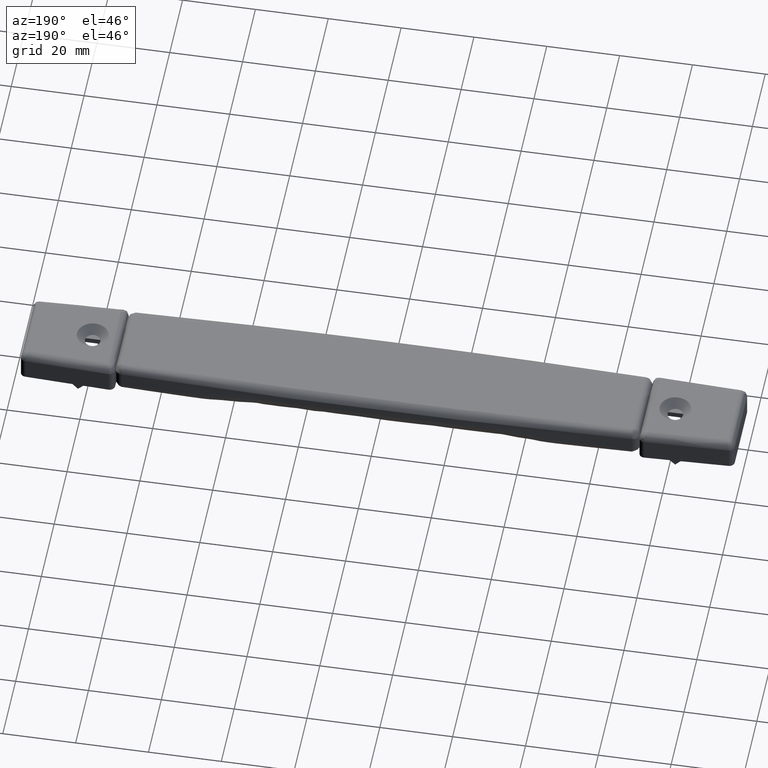
[diagram: clean part render]
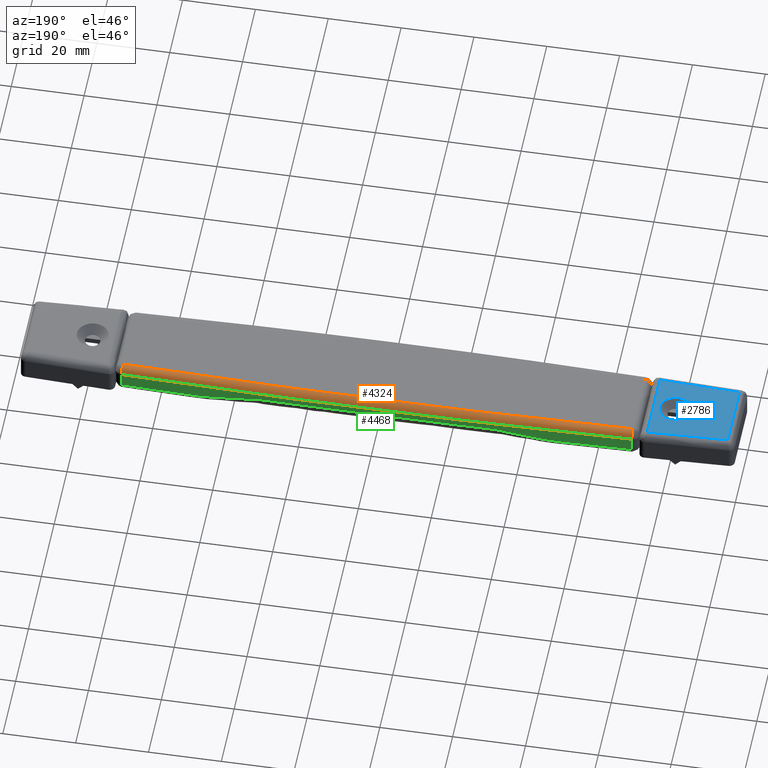
[diagram: same view with three faces highlighted in distinct colors, each labeled with its STEP entity id]
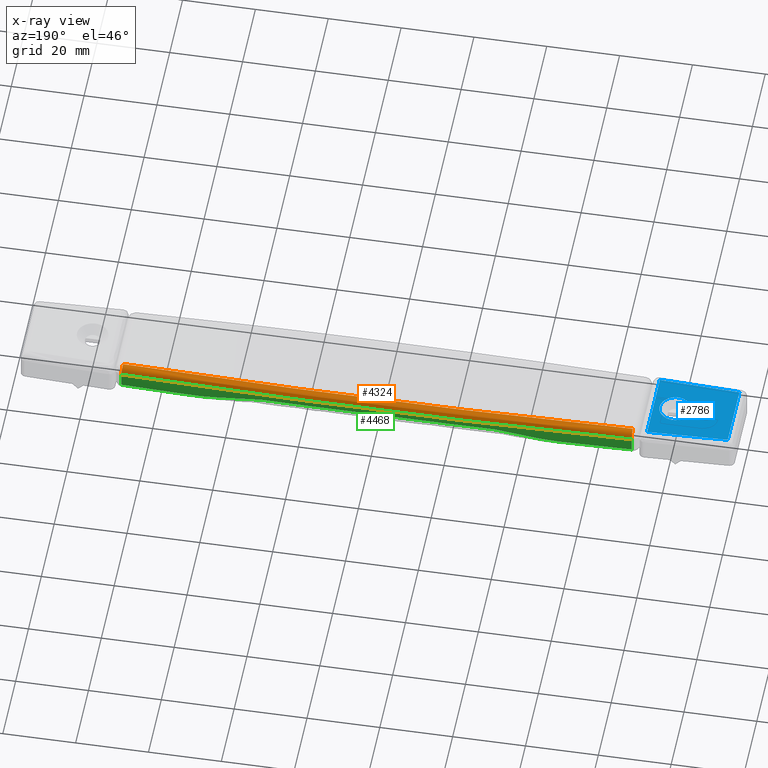
[diagram: x-ray of the same camera — body ghosted, the three highlighted faces saturated]
A machine part, auxiliary view with three faces highlighted in distinct colors.
The next image is the same camera in x-ray (body ghosted, the three faces saturated) — at least one of them is partly hidden behind the body in this view.
Their STEP definitions:

[orange] entity #4324 — the highlighted face is a freeform B-spline surface patch.
#3517=CARTESIAN_POINT('',(-69.999500000000012,9.434623333454349,7.999999999999900));
#3518=VERTEX_POINT('',#3517);
#3541=CARTESIAN_POINT('',(70.0,9.434608095802320,7.999999999999900));
#3542=VERTEX_POINT('',#3541);
#3548=CARTESIAN_POINT('',(70.0,9.434608095802320,7.999999999999900));
#3549=CARTESIAN_POINT('',(0.000250232184545,11.567879369502428,7.999999999999900));
#3550=CARTESIAN_POINT('',(-69.999499999999827,9.434623333454351,7.999999999999900));
#3558=(BOUNDED_CURVE()B_SPLINE_CURVE(2,(#3548,#3549,#3550),.UNSPECIFIED.,.F.,.U.)CURVE()GEOMETRIC_REPRESENTATION_ITEM()QUASI_UNIFORM_CURVE()RATIONAL_B_SPLINE_CURVE((1.0,0.999535951137790,1.0))REPRESENTATION_ITEM(''));
#3559=EDGE_CURVE('',#3542,#3518,#3558,.T.);
#4203=CARTESIAN_POINT('',(70.060922541340304,11.433679991446960,5.999999999999890));
#4204=VERTEX_POINT('',#4203);
#4218=CARTESIAN_POINT('',(70.060922541340304,11.433679991446960,5.999999999999890));
#4219=CARTESIAN_POINT('',(70.060922541340318,11.433679991446954,7.999999999999890));
#4220=CARTESIAN_POINT('',(70.0,9.434608095802219,7.999999999999889));
#4228=(BOUNDED_CURVE()B_SPLINE_CURVE(2,(#4218,#4219,#4220),.UNSPECIFIED.,.F.,.U.)CURVE()GEOMETRIC_REPRESENTATION_ITEM()QUASI_UNIFORM_CURVE()RATIONAL_B_SPLINE_CURVE((1.0,0.707106781186548,1.0))REPRESENTATION_ITEM(''));
#4229=EDGE_CURVE('',#4204,#3542,#4228,.T.);
#4275=CARTESIAN_POINT('',(-76.984070528232863,9.071984501828144,7.995158726982331));
#4276=CARTESIAN_POINT('',(0.000252814936310,11.652599957572246,7.995158726982332));
#4277=CARTESIAN_POINT('',(76.984575590574167,9.071967571420673,7.995158726982332));
#4278=CARTESIAN_POINT('',(-77.060930227571347,11.364845273765408,8.155074353999959));
#4279=CARTESIAN_POINT('',(0.000253067342792,13.948037175866201,8.155074353999957));
#4280=CARTESIAN_POINT('',(77.061435794158982,11.364828326454887,8.155074353999961));
#4281=CARTESIAN_POINT('',(-77.055572655346268,11.205019418429194,5.860925724765108));
#4282=CARTESIAN_POINT('',(0.000253049748597,13.788031727094705,5.860925724765110));
#4283=CARTESIAN_POINT('',(77.056078186785015,11.205002472296924,5.860925724765111));
#4291=(BOUNDED_SURFACE()B_SPLINE_SURFACE(2,2,((#4275,#4278,#4281),(#4276,#4279,#4282),(#4277,#4280,#4283)),.UNSPECIFIED.,.F.,.F.,.U.)B_SPLINE_SURFACE_WITH_KNOTS((3,3),(3,3),(35.002526400375373,189.154066922378600),(0.417733704456687,4.062481666198373),.UNSPECIFIED.)GEOMETRIC_REPRESENTATION_ITEM()RATIONAL_B_SPLINE_SURFACE(((0.892954805773464,0.585979223704067,0.892954805690098),(0.892453529572847,0.585650273753857,0.892453529489529),(0.892954809063988,0.585979225863391,0.892954808980622)))REPRESENTATION_ITEM('')SURFACE());
#4292=CARTESIAN_POINT('',(-70.060422106179104,11.433695242360381,5.999999999999890));
#4293=VERTEX_POINT('',#4292);
#4294=CARTESIAN_POINT('',(-70.060422106179303,11.433695242360310,5.999999999999890));
#4295=CARTESIAN_POINT('',(-70.060422106179303,11.433695242360312,7.999999999999452));
#4296=CARTESIAN_POINT('',(-69.999500000000026,9.434623333454349,7.999999999999889));
#4304=(BOUNDED_CURVE()B_SPLINE_CURVE(2,(#4294,#4295,#4296),.UNSPECIFIED.,.F.,.U.)CURVE()GEOMETRIC_REPRESENTATION_ITEM()QUASI_UNIFORM_CURVE()RATIONAL_B_SPLINE_CURVE((1.0,0.707106781186625,1.0))REPRESENTATION_ITEM(''));
#4305=EDGE_CURVE('',#4293,#3518,#4304,.T.);
#4306=ORIENTED_EDGE('',*,*,#4305,.T.);
#4307=ORIENTED_EDGE('',*,*,#3559,.F.);
#4308=ORIENTED_EDGE('',*,*,#4229,.F.);
#4309=CARTESIAN_POINT('',(-70.060422106179175,11.433695242360381,5.999999999999890));
#4310=CARTESIAN_POINT('',(0.000250449971445,13.568807898109100,5.999999999999890));
#4311=CARTESIAN_POINT('',(70.060922541340048,11.433679991446949,5.999999999999890));
#4319=(BOUNDED_CURVE()B_SPLINE_CURVE(2,(#4309,#4310,#4311),.UNSPECIFIED.,.F.,.U.)CURVE()GEOMETRIC_REPRESENTATION_ITEM()QUASI_UNIFORM_CURVE()RATIONAL_B_SPLINE_CURVE((1.0,0.999535951137790,1.0))REPRESENTATION_ITEM(''));
#4320=EDGE_CURVE('',#4293,#4204,#4319,.T.);
#4321=ORIENTED_EDGE('',*,*,#4320,.F.);
#4322=EDGE_LOOP('',(#4306,#4307,#4308,#4321));
#4323=FACE_OUTER_BOUND('',#4322,.T.);
#4324=ADVANCED_FACE('',(#4323),#4291,.T.);

[blue] entity #2786 — the highlighted face is a freeform B-spline surface patch.
#903=CARTESIAN_POINT('',(-79.662625885912988,-4.286744535178922,8.000000000318709));
#904=VERTEX_POINT('',#903);
#910=CARTESIAN_POINT('',(-75.699999999999932,7.894425E-016,7.999999999999900));
#911=VERTEX_POINT('',#910);
#912=CARTESIAN_POINT('',(-75.699999999999932,7.894425E-016,7.999999999999900));
#913=CARTESIAN_POINT('',(-75.699999999987426,-3.974879112026979,8.000000000159306));
#914=CARTESIAN_POINT('',(-79.662625885912988,-4.286744535178923,8.000000000318709));
#922=(BOUNDED_CURVE()B_SPLINE_CURVE(2,(#912,#913,#914),.UNSPECIFIED.,.F.,.U.)B_SPLINE_CURVE_WITH_KNOTS((3,3),(0.0,0.236331300535502),.UNSPECIFIED.)CURVE()GEOMETRIC_REPRESENTATION_ITEM()RATIONAL_B_SPLINE_CURVE((1.0,0.723120658719150,0.969723355968831))REPRESENTATION_ITEM(''));
#923=EDGE_CURVE('',#911,#904,#922,.T.);
#925=CARTESIAN_POINT('',(-80.337374114087012,4.286744535178924,8.000000000318709));
#926=VERTEX_POINT('',#925);
#927=CARTESIAN_POINT('',(-80.337374114087012,4.286744535178924,8.000000000318709));
#928=CARTESIAN_POINT('',(-80.168947461379304,4.300000000312125,8.000000000312918));
#929=CARTESIAN_POINT('',(-80.000000000024059,4.300000000305882,8.000000000306656));
#930=CARTESIAN_POINT('',(-75.700000000011471,4.300000000146969,8.000000000147253));
#931=CARTESIAN_POINT('',(-75.699999999999932,7.894425E-016,7.999999999999900));
#939=(BOUNDED_CURVE()B_SPLINE_CURVE(2,(#927,#928,#929,#930,#931),.UNSPECIFIED.,.F.,.U.)B_SPLINE_CURVE_WITH_KNOTS((3,2,3),(0.736331300535502,0.750000000000000,1.0),.UNSPECIFIED.)CURVE()GEOMETRIC_REPRESENTATION_ITEM()RATIONAL_B_SPLINE_CURVE((0.969723355968831,0.983986122467398,1.0,0.707106781186548,1.0))REPRESENTATION_ITEM(''));
#940=EDGE_CURVE('',#926,#911,#939,.T.);
#976=CARTESIAN_POINT('',(-84.300000000000068,7.894425E-016,7.999999999999900));
#977=VERTEX_POINT('',#976);
#978=CARTESIAN_POINT('',(-84.300000000000068,7.894425E-016,7.999999999999900));
#979=CARTESIAN_POINT('',(-84.300000000012574,3.974879112026983,8.000000000159306));
#980=CARTESIAN_POINT('',(-80.337374114087012,4.286744535178924,8.000000000318709));
#988=(BOUNDED_CURVE()B_SPLINE_CURVE(2,(#978,#979,#980),.UNSPECIFIED.,.F.,.U.)B_SPLINE_CURVE_WITH_KNOTS((3,3),(0.500000000000000,0.736331300535502),.UNSPECIFIED.)CURVE()GEOMETRIC_REPRESENTATION_ITEM()RATIONAL_B_SPLINE_CURVE((1.0,0.723120658719150,0.969723355968831))REPRESENTATION_ITEM(''));
#989=EDGE_CURVE('',#977,#926,#988,.T.);
#991=CARTESIAN_POINT('',(-79.662625885912988,-4.286744535178922,8.000000000318709));
#992=CARTESIAN_POINT('',(-79.831052538620682,-4.300000000312123,8.000000000312918));
#993=CARTESIAN_POINT('',(-79.999999999975927,-4.300000000305880,8.000000000306656));
#994=CARTESIAN_POINT('',(-84.299999999988501,-4.300000000146967,8.000000000147253));
#995=CARTESIAN_POINT('',(-84.300000000000068,7.894425E-016,7.999999999999900));
#1003=(BOUNDED_CURVE()B_SPLINE_CURVE(2,(#991,#992,#993,#994,#995),.UNSPECIFIED.,.F.,.U.)B_SPLINE_CURVE_WITH_KNOTS((3,2,3),(0.236331300535503,0.250000000000000,0.500000000000000),.UNSPECIFIED.)CURVE()GEOMETRIC_REPRESENTATION_ITEM()RATIONAL_B_SPLINE_CURVE((0.969723355968832,0.983986122467398,1.0,0.707106781186548,1.0))REPRESENTATION_ITEM(''));
#1004=EDGE_CURVE('',#904,#977,#1003,.T.);
#2117=CARTESIAN_POINT('',(-74.0,9.921535138724162,7.999999999999900));
#2118=VERTEX_POINT('',#2117);
#2472=CARTESIAN_POINT('',(-96.0,-9.074990840627189,7.999999999999900));
#2473=VERTEX_POINT('',#2472);
#2517=CARTESIAN_POINT('',(-74.0,-9.921512579757639,7.999999999999900));
#2518=VERTEX_POINT('',#2517);
#2532=CARTESIAN_POINT('',(-96.0,-9.074990840627189,7.999999999999900));
#2533=CARTESIAN_POINT('',(-74.0,-9.921512579757639,7.999999999999900));
#2534=QUASI_UNIFORM_CURVE('',1,(#2532,#2533),.UNSPECIFIED.,.F.,.U.);
#2535=EDGE_CURVE('',#2473,#2518,#2534,.T.);
#2556=CARTESIAN_POINT('',(-96.0,9.075969921332749,7.999999999999900));
#2557=VERTEX_POINT('',#2556);
#2573=CARTESIAN_POINT('',(-96.0,9.075969921332749,7.999999999999900));
#2574=CARTESIAN_POINT('',(-96.0,-9.074990840627189,7.999999999999900));
#2575=QUASI_UNIFORM_CURVE('',1,(#2573,#2574),.UNSPECIFIED.,.F.,.U.);
#2576=EDGE_CURVE('',#2557,#2473,#2575,.T.);
#2732=CARTESIAN_POINT('',(-74.0,-9.921512579757639,7.999999999999900));
#2733=CARTESIAN_POINT('',(-74.0,9.921535138724162,7.999999999999900));
#2734=QUASI_UNIFORM_CURVE('',1,(#2732,#2733),.UNSPECIFIED.,.F.,.U.);
#2735=EDGE_CURVE('',#2518,#2118,#2734,.T.);
#2761=CARTESIAN_POINT('',(-74.0,9.921535138724162,7.999999999999900));
#2762=CARTESIAN_POINT('',(-96.0,9.075969921332749,7.999999999999900));
#2763=QUASI_UNIFORM_CURVE('',1,(#2761,#2762),.UNSPECIFIED.,.F.,.U.);
#2764=EDGE_CURVE('',#2118,#2557,#2763,.T.);
#2769=CARTESIAN_POINT('',(-72.901100042640266,-10.912672774836130,7.999999999999900));
#2770=CARTESIAN_POINT('',(-97.098900547445737,-10.912672774836130,7.999999999999900));
#2771=CARTESIAN_POINT('',(-72.901100042640266,10.912695866034669,7.999999999999900));
#2772=CARTESIAN_POINT('',(-97.098900547445737,10.912695866034669,7.999999999999900));
#2773=B_SPLINE_SURFACE_WITH_KNOTS('',1,1,((#2769,#2771),(#2770,#2772)),.UNSPECIFIED.,.F.,.F.,.U.,(2,2),(2,2),(0.0,24.197800504805471),(0.0,21.825368640870799),.UNSPECIFIED.);
#2774=ORIENTED_EDGE('',*,*,#2764,.T.);
#2775=ORIENTED_EDGE('',*,*,#2576,.T.);
#2776=ORIENTED_EDGE('',*,*,#2535,.T.);
#2777=ORIENTED_EDGE('',*,*,#2735,.T.);
#2778=EDGE_LOOP('',(#2774,#2775,#2776,#2777));
#2779=FACE_OUTER_BOUND('',#2778,.T.);
#2780=ORIENTED_EDGE('',*,*,#989,.T.);
#2781=ORIENTED_EDGE('',*,*,#940,.T.);
#2782=ORIENTED_EDGE('',*,*,#923,.T.);
#2783=ORIENTED_EDGE('',*,*,#1004,.T.);
#2784=EDGE_LOOP('',(#2780,#2781,#2782,#2783));
#2785=FACE_BOUND('',#2784,.T.);
#2786=ADVANCED_FACE('',(#2779,#2785),#2773,.F.);

[green] entity #4468 — the highlighted face is a freeform B-spline surface patch.
#3756=CARTESIAN_POINT('',(-70.060422106179104,11.433695242360381,1.999999999991010));
#3757=VERTEX_POINT('',#3756);
#3825=CARTESIAN_POINT('',(70.060922541340304,11.433679991446960,1.999999999896195));
#3826=VERTEX_POINT('',#3825);
#4009=CARTESIAN_POINT('',(70.060922541340304,11.433679991446960,1.999999999896195));
#4010=CARTESIAN_POINT('',(67.985131336759324,11.495347299858439,1.999993883140335));
#4011=CARTESIAN_POINT('',(64.287772353036388,11.605187912081460,1.999982987908680));
#4012=CARTESIAN_POINT('',(59.422637933759361,11.734434931665410,1.999929759156624));
#4013=CARTESIAN_POINT('',(55.920146009163922,11.821705197428059,1.999759724209971));
#4014=CARTESIAN_POINT('',(53.780445617778902,11.872309873604150,1.999695167426434));
#4015=CARTESIAN_POINT('',(51.908328084759823,11.915412058841730,1.999194516618192));
#4016=CARTESIAN_POINT('',(50.189855998140303,11.953675422206061,1.997023135148806));
#4017=CARTESIAN_POINT('',(48.282474114825568,11.994328023734891,2.031015246930440));
#4018=CARTESIAN_POINT('',(46.789952241923807,12.025158133439991,2.136643394078094));
#4019=CARTESIAN_POINT('',(45.330115759733701,12.054424371915699,2.275542792962875));
#4020=CARTESIAN_POINT('',(43.757273740416757,12.084915797592551,2.462204261943198));
#4021=CARTESIAN_POINT('',(41.772135691980928,12.121993774732100,2.743234184840033));
#4022=CARTESIAN_POINT('',(39.490165654738071,12.162443801821221,3.083669301762111));
#4023=CARTESIAN_POINT('',(37.132250762432207,12.201589754872611,3.428052244833480));
#4024=CARTESIAN_POINT('',(34.903226831538277,12.236474061708490,3.714460876428911));
#4025=CARTESIAN_POINT('',(32.807877446922319,12.267345917879000,3.910592128922406));
#4026=CARTESIAN_POINT('',(31.121941804897581,12.290578290335629,3.995093032932618));
#4027=CARTESIAN_POINT('',(29.722420497016191,12.309029607740131,3.997408513673379));
#4028=CARTESIAN_POINT('',(28.262738581547609,12.327598158260731,4.000094187189374));
#4029=CARTESIAN_POINT('',(25.566601792356259,12.359721099678969,3.999938760325939));
#4030=CARTESIAN_POINT('',(21.897281992803080,12.398150366457690,4.000020180392837));
#4031=CARTESIAN_POINT('',(16.058199914959680,12.448184576810039,3.999988300429789));
#4032=CARTESIAN_POINT('',(8.759189256293141,12.489880334898430,4.000004394217262));
#4033=CARTESIAN_POINT('',(0.000250331616593,12.506559355869680,3.999997341456932));
#4034=CARTESIAN_POINT('',(-8.758688580299173,12.489882241542160,4.000006239955027));
#4035=CARTESIAN_POINT('',(-16.057699289013449,12.448188072376951,3.999982455592831));
#4036=CARTESIAN_POINT('',(-21.896781295795869,12.398155132952921,4.000030331956829));
#4037=CARTESIAN_POINT('',(-25.565834010762160,12.359729464689400,3.999907937711593));
#4038=CARTESIAN_POINT('',(-28.261703109986879,12.327610764221211,4.000141554602434));
#4039=CARTESIAN_POINT('',(-29.721385716080931,12.309043041597709,3.997320272378577));
#4040=CARTESIAN_POINT('',(-30.881647236796240,12.293746563852411,3.995683347691382));
#4041=CARTESIAN_POINT('',(-32.042538483530556,12.277931404488911,3.950467621605908));
#4042=CARTESIAN_POINT('',(-33.502778908846622,12.257145692082339,3.847372530678634));
#4043=CARTESIAN_POINT('',(-35.148482330236753,12.232635327462230,3.682726410271000));
#4044=CARTESIAN_POINT('',(-37.131358179487513,12.201604185640431,3.428184543302800));
#4045=CARTESIAN_POINT('',(-39.489100171099217,12.162462199761849,3.083700998785987));
#4046=CARTESIAN_POINT('',(-41.771462835696347,12.122006046476431,2.743362297375454));
#4047=CARTESIAN_POINT('',(-44.003162465916837,12.080323365574650,2.427116775849035));
#4048=CARTESIAN_POINT('',(-46.021809950761231,12.040866812663999,2.199228087670828));
#4049=CARTESIAN_POINT('',(-48.042182117738719,11.999446180340790,2.036205342506074));
#4050=CARTESIAN_POINT('',(-50.189200014797727,11.953700553492739,1.996636615232163));
#4051=CARTESIAN_POINT('',(-53.147692924984362,11.887727873994031,2.000669781414121));
#4052=CARTESIAN_POINT('',(-59.885507897561162,11.728291712555770,1.998979531422958));
#4053=CARTESIAN_POINT('',(-65.722335943254777,11.559296780103111,1.999564922069809));
#4054=CARTESIAN_POINT('',(-70.060422106174798,11.433695242360820,2.000000000000002));
#4055=B_SPLINE_CURVE_WITH_KNOTS('',3,(#4009,#4010,#4011,#4012,#4013,#4014,#4015,#4016,#4017,#4018,#4019,#4020,#4021,#4022,#4023,#4024,#4025,#4026,#4027,#4028,#4029,#4030,#4031,#4032,#4033,#4034,#4035,#4036,#4037,#4038,#4039,#4040,#4041,#4042,#4043,#4044,#4045,#4046,#4047,#4048,#4049,#4050,#4051,#4052,#4053,#4054),.UNSPECIFIED.,.F.,.U.,(4,1,1,1,1,1,1,1,1,1,1,1,1,1,1,1,1,1,1,1,1,1,1,1,1,1,1,1,1,1,1,1,1,1,1,1,1,1,1,1,1,1,1,4),(0.0,0.044380496203012,0.079049678009906,0.104007542385464,0.119254087166153,0.124789311191695,0.144026214445056,0.155990512016442,0.165554416205118,0.175999984476000,0.187333969360913,0.199405368822754,0.218852457233639,0.236648714342782,0.250336457954506,0.266880499127404,0.281618429992742,0.286391305264236,0.296790428711076,0.312815851447357,0.344013180195941,0.375210508944526,0.437605138164037,0.499999767383551,0.562394396603000,0.624789025822489,0.655986354571073,0.687183683319654,0.703203393315066,0.713602516761913,0.718381104685008,0.728000001937689,0.738424419784774,0.749664719435598,0.763343966310338,0.781148721350472,0.800592107111735,0.812667208509293,0.829323426009424,0.844009589189730,0.855970832437691,0.875210794872944,0.907253336948504,1.0),.UNSPECIFIED.);
#4056=EDGE_CURVE('',#3826,#3757,#4055,.T.);
#4203=CARTESIAN_POINT('',(70.060922541340304,11.433679991446960,5.999999999999890));
#4204=VERTEX_POINT('',#4203);
#4292=CARTESIAN_POINT('',(-70.060422106179104,11.433695242360381,5.999999999999890));
#4293=VERTEX_POINT('',#4292);
#4309=CARTESIAN_POINT('',(-70.060422106179175,11.433695242360381,5.999999999999890));
#4310=CARTESIAN_POINT('',(0.000250449971445,13.568807898109100,5.999999999999890));
#4311=CARTESIAN_POINT('',(70.060922541340048,11.433679991446949,5.999999999999890));
#4319=(BOUNDED_CURVE()B_SPLINE_CURVE(2,(#4309,#4310,#4311),.UNSPECIFIED.,.F.,.U.)CURVE()GEOMETRIC_REPRESENTATION_ITEM()QUASI_UNIFORM_CURVE()RATIONAL_B_SPLINE_CURVE((1.0,0.999535951137790,1.0))REPRESENTATION_ITEM(''));
#4320=EDGE_CURVE('',#4293,#4204,#4319,.T.);
#4412=CARTESIAN_POINT('',(-70.060422106179104,11.433695242360381,1.999999999991010));
#4413=CARTESIAN_POINT('',(-70.060422106179104,11.433695242360381,5.999999999999890));
#4414=QUASI_UNIFORM_CURVE('',1,(#4412,#4413),.UNSPECIFIED.,.F.,.U.);
#4415=EDGE_CURVE('',#3757,#4293,#4414,.T.);
#4439=CARTESIAN_POINT('',(70.060922541340304,11.433679991446960,5.999999999999890));
#4440=CARTESIAN_POINT('',(70.060922541340304,11.433679991446960,1.999999999896195));
#4441=QUASI_UNIFORM_CURVE('',1,(#4439,#4440),.UNSPECIFIED.,.F.,.U.);
#4442=EDGE_CURVE('',#4204,#3826,#4441,.T.);
#4448=CARTESIAN_POINT('',(-77.053300210169581,11.209939584722138,1.899460597290909));
#4449=CARTESIAN_POINT('',(-77.053300210169581,11.209939584722138,6.102513485067616));
#4450=CARTESIAN_POINT('',(0.002687247761234,13.792875611263813,1.899460597290910));
#4451=CARTESIAN_POINT('',(0.002687247761234,13.792875611263813,6.102513485067616));
#4452=CARTESIAN_POINT('',(77.058668673227473,11.209759626217950,1.899460597290909));
#4453=CARTESIAN_POINT('',(77.058668673227473,11.209759626217950,6.102513485067617));
#4461=(BOUNDED_SURFACE()B_SPLINE_SURFACE(1,2,((#4448,#4450,#4452),(#4449,#4451,#4453)),.UNSPECIFIED.,.F.,.F.,.U.)B_SPLINE_SURFACE_WITH_KNOTS((2,2),(3,3),(0.0,4.203052887776707),(35.003426836776733,189.158659650039710),.UNSPECIFIED.)GEOMETRIC_REPRESENTATION_ITEM()RATIONAL_B_SPLINE_SURFACE(((0.998859343722424,0.997935041077991,0.998131921303722),(0.998859343722424,0.997935041077991,0.998131921303722)))REPRESENTATION_ITEM('')SURFACE());
#4462=ORIENTED_EDGE('',*,*,#4442,.T.);
#4463=ORIENTED_EDGE('',*,*,#4056,.T.);
#4464=ORIENTED_EDGE('',*,*,#4415,.T.);
#4465=ORIENTED_EDGE('',*,*,#4320,.T.);
#4466=EDGE_LOOP('',(#4462,#4463,#4464,#4465));
#4467=FACE_OUTER_BOUND('',#4466,.T.);
#4468=ADVANCED_FACE('',(#4467),#4461,.T.);